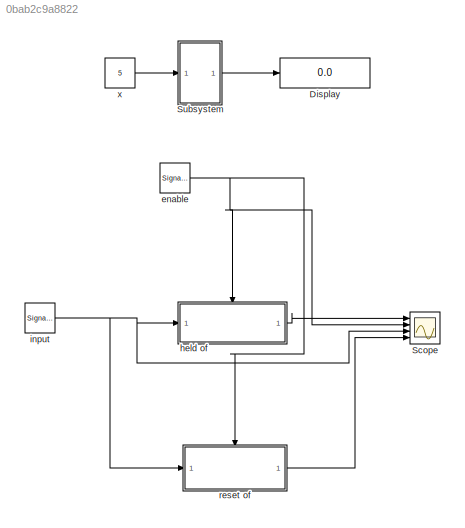
MODEL slx_0bab2c9a8822
KIND model
CONFIG AbsTol = auto
CONFIG EnableMultiTasking = off
CONFIG FixedStep = auto
CONFIG MaxStep = auto
CONFIG MinStep = auto
CONFIG RelTol = 1e-3
CONFIG SampleTimeConstraint = Unconstrained
CONFIG SolverName = VariableStepAuto
CONFIG StartTime = 0.0
CONFIG StopTime = 10.0
BLOCK [Display] Display
  Decimation = 1
  Ports = [1]
BLOCK [Scope] Scope
  Floating = off
  NumInputPorts = 4
  Ports = [4]
  ScopeSpecificationString = Simulink.scopes.TimeScopeBlockCfg('CurrentConfiguration', extmgr.ConfigurationSet(extmgr.Configuration('Core','General UI',true),extmgr.Configuration('Core','Source UI',true),extmgr.Configuration('Sources','WiredSimulink',true),extmgr.Configuration('Visuals','Time Domain',true,'SerializedDisplays',{struct('MinYLimReal','-1.25','MaxYLimReal','1.25','YLabelReal','','MinYLimMag','0.00000','MaxYLimMag...<+1454ch>
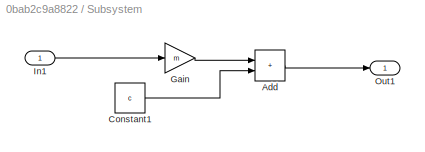
BLOCK [SubSystem] Subsystem
  Ports = [1, 1]
  RequestExecContextInheritance = off
  TreatAsAtomicUnit = on
BLOCK [Sum] Subsystem/Add
  IconShape = rectangular
  Ports = [2, 1]
BLOCK [Constant] Subsystem/Constant1
  Value = c
BLOCK [Gain] Subsystem/Gain
  Gain = m
BLOCK [Inport] Subsystem/In1
BLOCK [Outport] Subsystem/Out1
BLOCK [SignalGenerator] enable
  Frequency = 2
  Ports = [0, 1]
  WaveForm = square
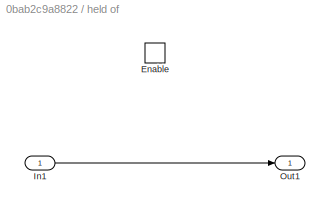
BLOCK [SubSystem] held of
  Ports = [1, 1, 1]
  RequestExecContextInheritance = off
BLOCK [EnablePort] held of/Enable
  Ports = []
BLOCK [Inport] held of/In1
BLOCK [Outport] held of/Out1
BLOCK [SignalGenerator] input
  Ports = [0, 1]
  Units = rad/sec
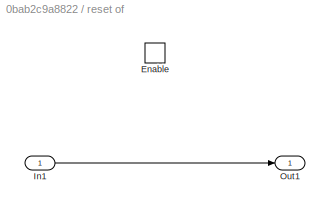
BLOCK [SubSystem] reset of
  Ports = [1, 1, 1]
  RequestExecContextInheritance = off
BLOCK [EnablePort] reset of/Enable
  Ports = []
  StatesWhenEnabling = reset
BLOCK [Inport] reset of/In1
BLOCK [Outport] reset of/Out1
BLOCK [Constant] x
  Value = 5
LINE Subsystem/Add:1 -> Subsystem/Out1:1
LINE Subsystem/Constant1:1 -> Subsystem/Add:2
LINE Subsystem/Gain:1 -> Subsystem/Add:1
LINE Subsystem/In1:1 -> Subsystem/Gain:1
LINE Subsystem:1 -> Display:1
NET enable:1 -> Scope:2, held of:enable, reset of:enable
LINE held of/In1:1 -> held of/Out1:1
LINE held of:1 -> Scope:1
NET input:1 -> Scope:3, held of:1, reset of:1
LINE reset of/In1:1 -> reset of/Out1:1
LINE reset of:1 -> Scope:4
LINE x:1 -> Subsystem:1
note: NET lines group one-source signal fan-out (src -> all destinations, sorted); 1:1 wires keep LINE
